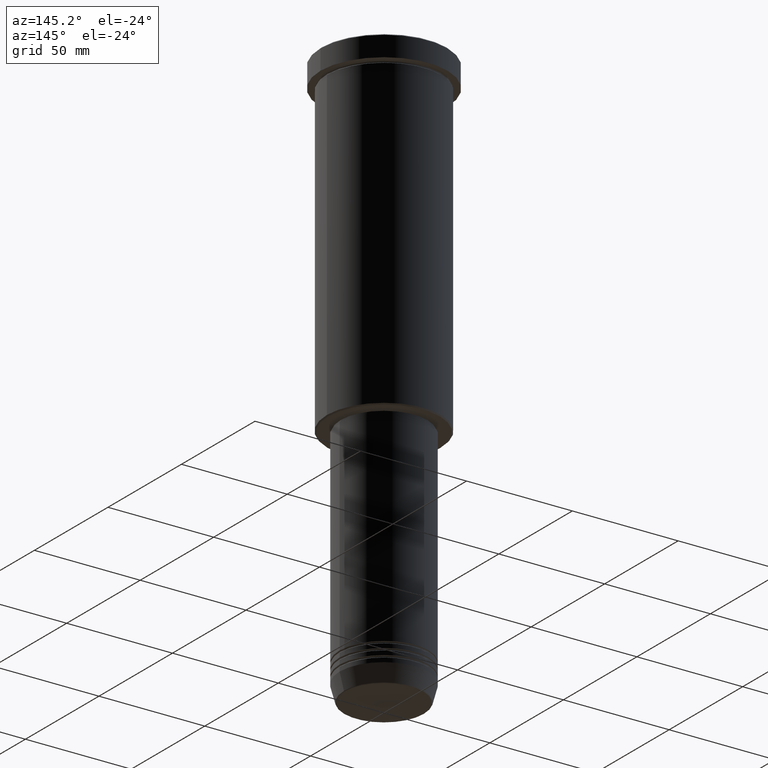
[diagram: clean part render]
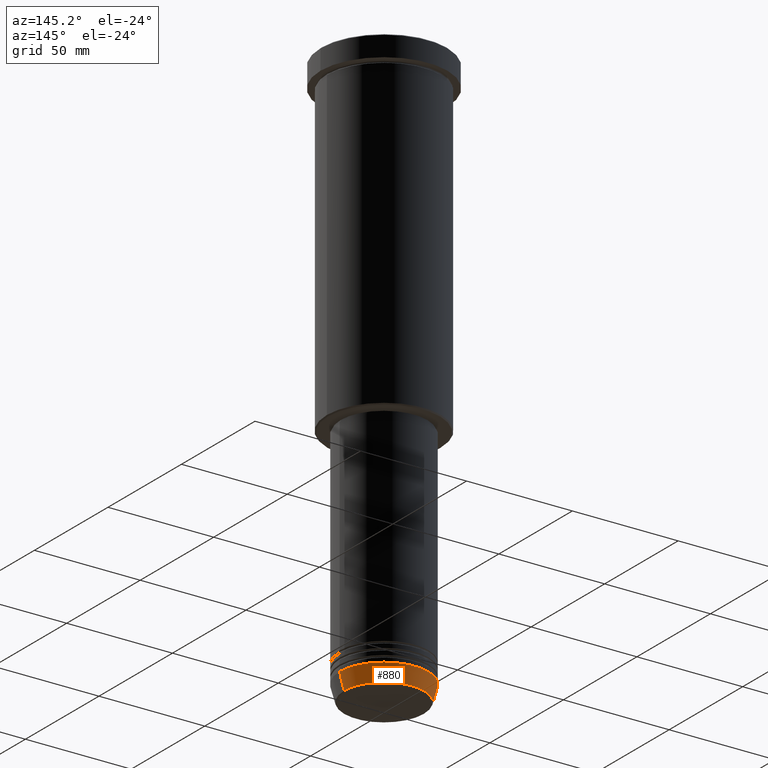
[diagram: same view with one face highlighted and labeled with its STEP entity id]
A machine part, auxiliary view. The second image highlights one B-rep face of the part: STEP entity #880.
In plain terms, the highlighted conical surface has half-angle 15 deg.
Its self-contained STEP definition (entity closure, byte-faithful):
#118 = VERTEX_POINT ( 'NONE', #787 ) ;
#124 = EDGE_CURVE ( 'NONE', #118, #326, #1002, .T. ) ;
#254 = VECTOR ( 'NONE', #413, 1000.000000000000114 ) ;
#281 = DIRECTION ( 'NONE',  ( 0.2588190451025212391, 0.000000000000000000, 0.9659258262890680902 ) ) ;
#285 = DIRECTION ( 'NONE',  ( -0.000000000000000000, -0.000000000000000000, 1.000000000000000000 ) ) ;
#313 = VECTOR ( 'NONE', #281, 1000.000000000000114 ) ;
#326 = VERTEX_POINT ( 'NONE', #560 ) ;
#376 = AXIS2_PLACEMENT_3D ( 'NONE', #465, #932, #1015 ) ;
#413 = DIRECTION ( 'NONE',  ( -0.2588190451025212391, 3.169619151431771721E-17, 0.9659258262890680902 ) ) ;
#420 = FACE_OUTER_BOUND ( 'NONE', #566, .T. ) ;
#465 = CARTESIAN_POINT ( 'NONE',  ( 0.000000000000000000, 0.000000000000000000, -263.0000000000000000 ) ) ;
#470 = VERTEX_POINT ( 'NONE', #1155 ) ;
#507 = DIRECTION ( 'NONE',  ( -0.000000000000000000, -0.000000000000000000, 1.000000000000000000 ) ) ;
#531 = EDGE_CURVE ( 'NONE', #326, #470, #609, .T. ) ;
#560 = CARTESIAN_POINT ( 'NONE',  ( -18.95570587970606624, 2.446581365662755730E-15, -270.6294095225512706 ) ) ;
#566 = EDGE_LOOP ( 'NONE', ( #829, #919, #851, #884 ) ) ;
#609 = LINE ( 'NONE', #885, #254 ) ;
#641 = DIRECTION ( 'NONE',  ( 1.000000000000000000, 0.000000000000000000, 0.000000000000000000 ) ) ;
#705 = CARTESIAN_POINT ( 'NONE',  ( 0.000000000000000000, 0.000000000000000000, -263.0000000000000000 ) ) ;
#736 = CARTESIAN_POINT ( 'NONE',  ( 21.00000000000000000, 0.000000000000000000, -263.0000000000000000 ) ) ;
#786 = AXIS2_PLACEMENT_3D ( 'NONE', #705, #285, #1106 ) ;
#787 = CARTESIAN_POINT ( 'NONE',  ( 18.95570587970606624, 0.000000000000000000, -270.6294095225512706 ) ) ;
#816 = VERTEX_POINT ( 'NONE', #947 ) ;
#829 = ORIENTED_EDGE ( 'NONE', *, *, #124, .T. ) ;
#851 = ORIENTED_EDGE ( 'NONE', *, *, #972, .F. ) ;
#860 = CONICAL_SURFACE ( 'NONE', #786, 21.00000000000000000, 0.2617993877991499629 ) ;
#864 = CIRCLE ( 'NONE', #376, 21.00000000000000000 ) ;
#870 = CARTESIAN_POINT ( 'NONE',  ( 0.000000000000000000, 0.000000000000000000, -270.6294095225512706 ) ) ;
#880 = ADVANCED_FACE ( 'NONE', ( #420 ), #860, .T. ) ;
#884 = ORIENTED_EDGE ( 'NONE', *, *, #924, .F. ) ;
#885 = CARTESIAN_POINT ( 'NONE',  ( -21.00000000000000000, 2.571758278209441661E-15, -263.0000000000000000 ) ) ;
#912 = AXIS2_PLACEMENT_3D ( 'NONE', #870, #507, #641 ) ;
#919 = ORIENTED_EDGE ( 'NONE', *, *, #531, .T. ) ;
#924 = EDGE_CURVE ( 'NONE', #118, #816, #993, .T. ) ;
#932 = DIRECTION ( 'NONE',  ( -0.000000000000000000, -0.000000000000000000, 1.000000000000000000 ) ) ;
#947 = CARTESIAN_POINT ( 'NONE',  ( 21.00000000000000000, 0.000000000000000000, -263.0000000000000000 ) ) ;
#972 = EDGE_CURVE ( 'NONE', #816, #470, #864, .T. ) ;
#993 = LINE ( 'NONE', #736, #313 ) ;
#1002 = CIRCLE ( 'NONE', #912, 18.95570587970606624 ) ;
#1015 = DIRECTION ( 'NONE',  ( 1.000000000000000000, 0.000000000000000000, 0.000000000000000000 ) ) ;
#1106 = DIRECTION ( 'NONE',  ( 1.000000000000000000, 0.000000000000000000, 0.000000000000000000 ) ) ;
#1155 = CARTESIAN_POINT ( 'NONE',  ( -21.00000000000000000, 2.571758278209441661E-15, -263.0000000000000000 ) ) ;